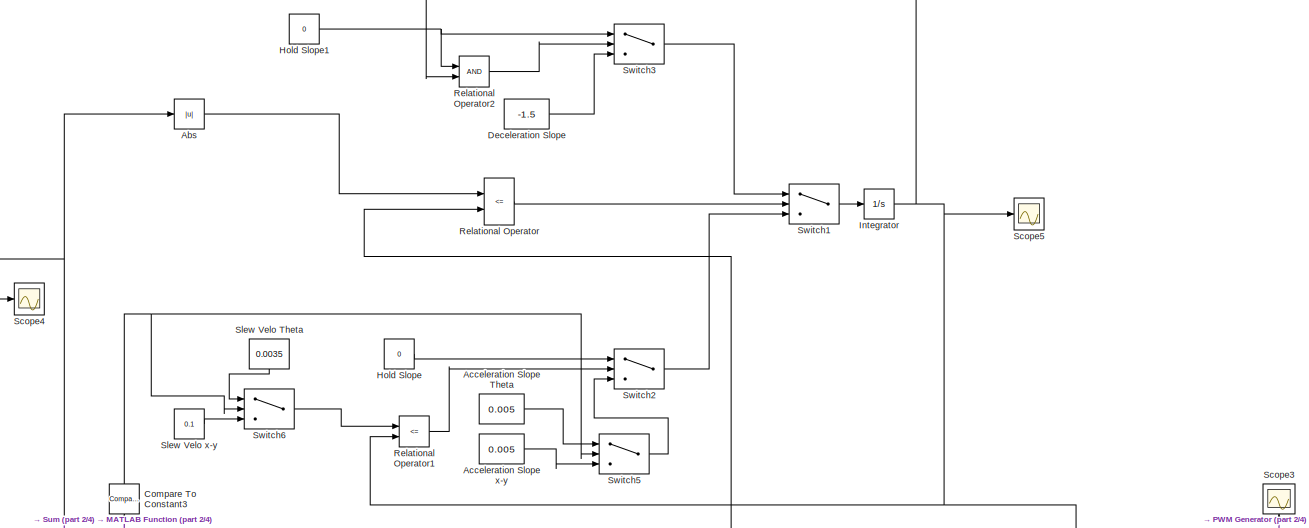
[diagram: root canvas - part 1/4, top left region]
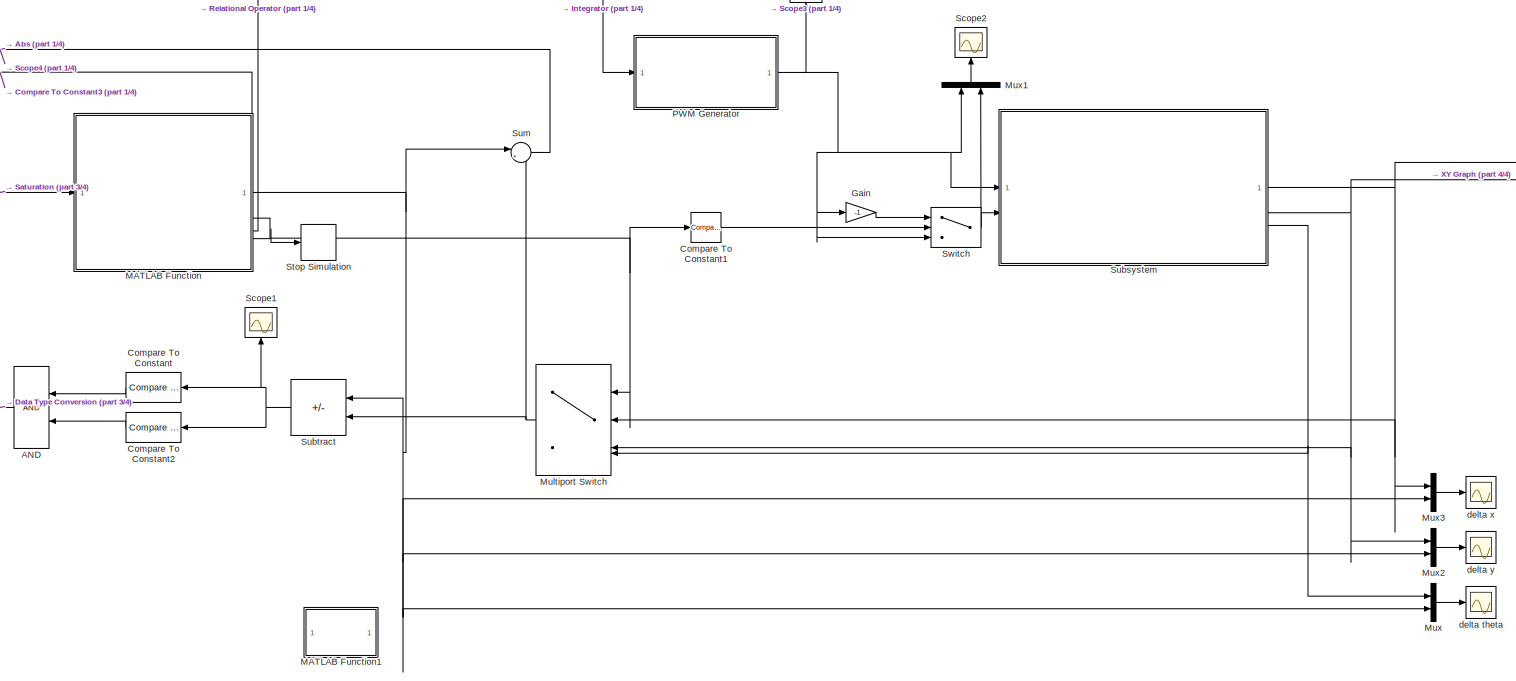
[diagram: root canvas - part 2/4, bottom center region]
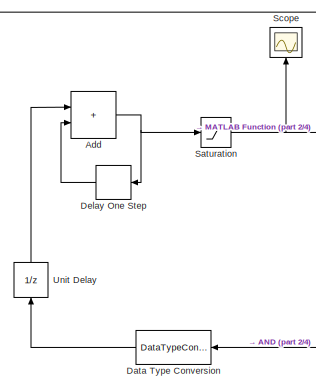
[diagram: root canvas - part 3/4, middle left region]
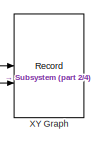
[diagram: root canvas - part 4/4, middle right region]
MODEL slx_6c52fc334cd0
KIND model
CONFIG AbsTol = auto
CONFIG EnableMultiTasking = off
CONFIG FixedStep = 0.01
CONFIG MaxStep = 0.01
CONFIG MinStep = 0.001
CONFIG RelTol = 1e-3
CONFIG SampleTimeConstraint = Unconstrained
CONFIG SolverName = ode45
CONFIG StartTime = 0.0
CONFIG StopTime = 700
WORKSPACE source: mxarray member
WORKSPACE L = 0.25
WORKSPACE R = 0.05
BLOCK [Logic] AND
  AllPortsSameDT = off
  IconShape = distinctive
  OutDataTypeStr = boolean
BLOCK [Abs] Abs
  SaturateOnIntegerOverflow = off
BLOCK [Constant] Acceleration Slope Theta
  Value = 0.005
BLOCK [Constant] Acceleration Slope x-y
  Value = 0.005
BLOCK [Sum] Add
  IconShape = rectangular
BLOCK [Reference] Compare To Constant  REF=simulink/Logic and Bit
Operations/Compare
To Constant
  NameLocation = top
  SourceBlock = simulink/Logic and Bit\nOperations/Compare\nTo Constant
  SourceType = Compare To Constant
BLOCK [Reference] Compare To Constant1  REF=simulink/Logic and Bit
Operations/Compare
To Constant
  SourceBlock = simulink/Logic and Bit\nOperations/Compare\nTo Constant
  SourceType = Compare To Constant
BLOCK [Reference] Compare To Constant2  REF=simulink/Logic and Bit
Operations/Compare
To Constant
  NameLocation = top
  SourceBlock = simulink/Logic and Bit\nOperations/Compare\nTo Constant
  SourceType = Compare To Constant
BLOCK [Reference] Compare To Constant3  REF=simulink/Logic and Bit
Operations/Compare
To Constant
  NameLocation = right
  SourceBlock = simulink/Logic and Bit\nOperations/Compare\nTo Constant
  SourceType = Compare To Constant
BLOCK [DataTypeConversion] Data Type Conversion
  RndMeth = Floor
  SaturateOnIntegerOverflow = off
BLOCK [Constant] Deceleration Slope
  Value = -1.5
BLOCK [Delay] Delay One Step
  DelayLength = 1
  InputPortMap = u0
BLOCK [Gain] Gain
  Gain = -1
BLOCK [Constant] Hold Slope
  Value = 0
BLOCK [Constant] Hold Slope1
  Value = 0
BLOCK [Integrator] Integrator
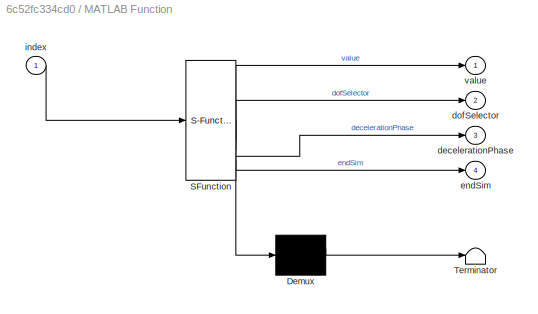
BLOCK [SubSystem] MATLAB Function
  ErrorFcn = Stateflow.Translate.translate
  PermitHierarchicalResolution = ExplicitOnly
  SFBlockType = MATLAB Function
  TreatAsAtomicUnit = on
BLOCK [Demux] MATLAB Function/ Demux 
  Outputs = 1
BLOCK [S-Function] MATLAB Function/ SFunction 
  EnableBusSupport = on
  FunctionName = sf_sfun
  PortCounts = [1 5]
  SFcnIsStateOwnerBlock = off
  SFunctionDeploymentMode = off
  Tag = Stateflow S-Function 2
BLOCK [Terminator] MATLAB Function/ Terminator 
BLOCK [Outport] MATLAB Function/decelerationPhase
  Port = 3
BLOCK [Outport] MATLAB Function/dofSelector
  Port = 2
BLOCK [Outport] MATLAB Function/endSim
  Port = 4
BLOCK [Inport] MATLAB Function/index
BLOCK [Outport] MATLAB Function/value
  VectorParamsAs1DForOutWhenUnconnected = off
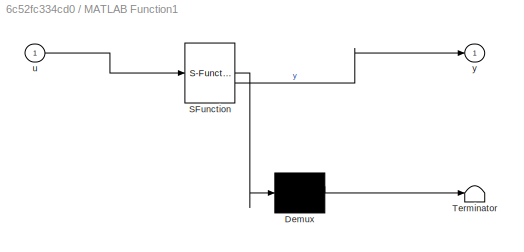
BLOCK [SubSystem] MATLAB Function1
  ErrorFcn = Stateflow.Translate.translate
  PermitHierarchicalResolution = ExplicitOnly
  SFBlockType = MATLAB Function
  TreatAsAtomicUnit = on
BLOCK [Demux] MATLAB Function1/ Demux 
  Outputs = 1
BLOCK [S-Function] MATLAB Function1/ SFunction 
  EnableBusSupport = on
  FunctionName = sf_sfun
  PortCounts = [1 2]
  SFcnIsStateOwnerBlock = off
  SFunctionDeploymentMode = off
  Tag = Stateflow S-Function 1
BLOCK [Terminator] MATLAB Function1/ Terminator 
BLOCK [Inport] MATLAB Function1/u
BLOCK [Outport] MATLAB Function1/y
BLOCK [MultiPortSwitch] Multiport Switch
  InputSameDT = off
  SaturateOnIntegerOverflow = off
BLOCK [Mux] Mux
  DisplayOption = bar
  Inputs = 2
BLOCK [Mux] Mux1
  DisplayOption = bar
  Inputs = 2
  NameLocation = right
BLOCK [Mux] Mux2
  DisplayOption = bar
  Inputs = 2
BLOCK [Mux] Mux3
  DisplayOption = bar
  Inputs = 2
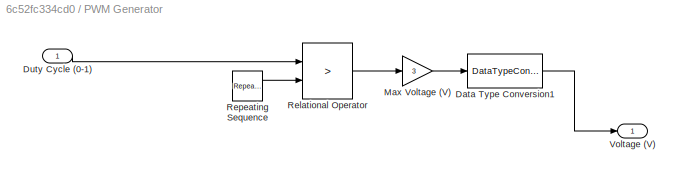
BLOCK [SubSystem] PWM Generator
BLOCK [DataTypeConversion] PWM Generator/Data Type Conversion1
  RndMeth = Floor
  SaturateOnIntegerOverflow = off
BLOCK [Inport] PWM Generator/Duty Cycle (0-1)
BLOCK [Gain] PWM Generator/Max Voltage (V)
  Gain = 3
BLOCK [RelationalOperator] PWM Generator/Relational Operator
  InputSameDT = off
  Operator = >
  OutDataTypeStr = boolean
  RndMeth = Simplest
BLOCK [Reference] PWM Generator/Repeating Sequence  REF=simulink/Sources/Repeating
Sequence
  SourceBlock = simulink/Sources/Repeating\nSequence
  SourceType = Repeating table
BLOCK [Outport] PWM Generator/Voltage (V)
BLOCK [RelationalOperator] Relational Operator
  InputSameDT = off
  Operator = <=
  OutDataTypeStr = boolean
  RndMeth = Simplest
BLOCK [RelationalOperator] Relational Operator1
  InputSameDT = off
  Operator = <=
  OutDataTypeStr = boolean
  RndMeth = Simplest
BLOCK [RelationalOperator] Relational Operator2
  InputSameDT = off
  OutDataTypeStr = boolean
  RndMeth = Simplest
BLOCK [Saturate] Saturation
  LinearizeAsGain = off
  LowerLimit = 0
  UpperLimit = 5
BLOCK [Scope] Scope
  Floating = off
  NameLocation = right
  NumInputPorts = 1
  ScopeSpecificationString = Simulink.scopes.TimeScopeBlockCfg('CurrentConfiguration', extmgr.ConfigurationSet(extmgr.Configuration('Core','General UI',true),extmgr.Configuration('Core','Source UI',true),extmgr.Configuration('Sources','WiredSimulink',true,'DataLoggingVariableName','ScopeData1'),extmgr.Configuration('Visuals','Time Domain',true,'SerializedDisplays',{struct('MinYLimReal','-0.125','MaxYLimReal','1.125','YLabelRe...<+1513ch>
BLOCK [Scope] Scope1
  Floating = off
  NameLocation = right
  NumInputPorts = 1
  ScopeSpecificationString = Simulink.scopes.TimeScopeBlockCfg('CurrentConfiguration', extmgr.ConfigurationSet(extmgr.Configuration('Core','General UI',true),extmgr.Configuration('Core','Source UI',true),extmgr.Configuration('Sources','WiredSimulink',true,'DataLoggingVariableName','ScopeData2'),extmgr.Configuration('Visuals','Time Domain',true,'SerializedDisplays',{struct('MinYLimReal','-22.01338','MaxYLimReal','19.1126','YLa...<+1545ch>
BLOCK [Scope] Scope2
  Floating = off
  NameLocation = right
  NumInputPorts = 1
  ScopeSpecificationString = Simulink.scopes.TimeScopeBlockCfg('CurrentConfiguration', extmgr.ConfigurationSet(extmgr.Configuration('Core','General UI',true),extmgr.Configuration('Core','Source UI',true),extmgr.Configuration('Sources','WiredSimulink',true,'DataLoggingVariableName','ScopeData1'),extmgr.Configuration('Visuals','Time Domain',true,'SerializedDisplays',{struct('MinYLimReal','-3.75','MaxYLimReal','3.75','YLabelReal...<+1519ch>
BLOCK [Scope] Scope3
  Floating = off
  NameLocation = right
  NumInputPorts = 1
  ScopeSpecificationString = Simulink.scopes.TimeScopeBlockCfg('CurrentConfiguration', extmgr.ConfigurationSet(extmgr.Configuration('Core','General UI',true),extmgr.Configuration('Core','Source UI',true),extmgr.Configuration('Sources','WiredSimulink',true,'DataLoggingVariableName','ScopeData2'),extmgr.Configuration('Visuals','Time Domain',true,'SerializedDisplays',{struct('MinYLimReal','-1.5','MaxYLimReal','13.5','YLabelReal'...<+1529ch>
BLOCK [Scope] Scope4
  Floating = off
  NumInputPorts = 1
  ScopeSpecificationString = Simulink.scopes.TimeScopeBlockCfg('CurrentConfiguration', extmgr.ConfigurationSet(extmgr.Configuration('Core','General UI',true),extmgr.Configuration('Core','Source UI',true),extmgr.Configuration('Sources','WiredSimulink',true,'DataLoggingVariableName','ScopeData3'),extmgr.Configuration('Visuals','Time Domain',true,'SerializedDisplays',{struct('MinYLimReal','-19.18386','MaxYLimReal','19.05022','YL...<+1542ch>
BLOCK [Scope] Scope5
  Floating = off
  NumInputPorts = 1
  ScopeSpecificationString = Simulink.scopes.TimeScopeBlockCfg('CurrentConfiguration', extmgr.ConfigurationSet(extmgr.Configuration('Core','General UI',true),extmgr.Configuration('Core','Source UI',true),extmgr.Configuration('Sources','WiredSimulink',true,'DataLoggingVariableName','ScopeData4'),extmgr.Configuration('Visuals','Time Domain',true,'SerializedDisplays',{struct('MinYLimReal','-0.0125','MaxYLimReal','0.1125','YLabel...<+1494ch>
BLOCK [Constant] Slew Velo Theta
  NameLocation = left
  Value = 0.0035
BLOCK [Constant] Slew Velo x-y
  Value = 0.1
BLOCK [Stop] Stop Simulation
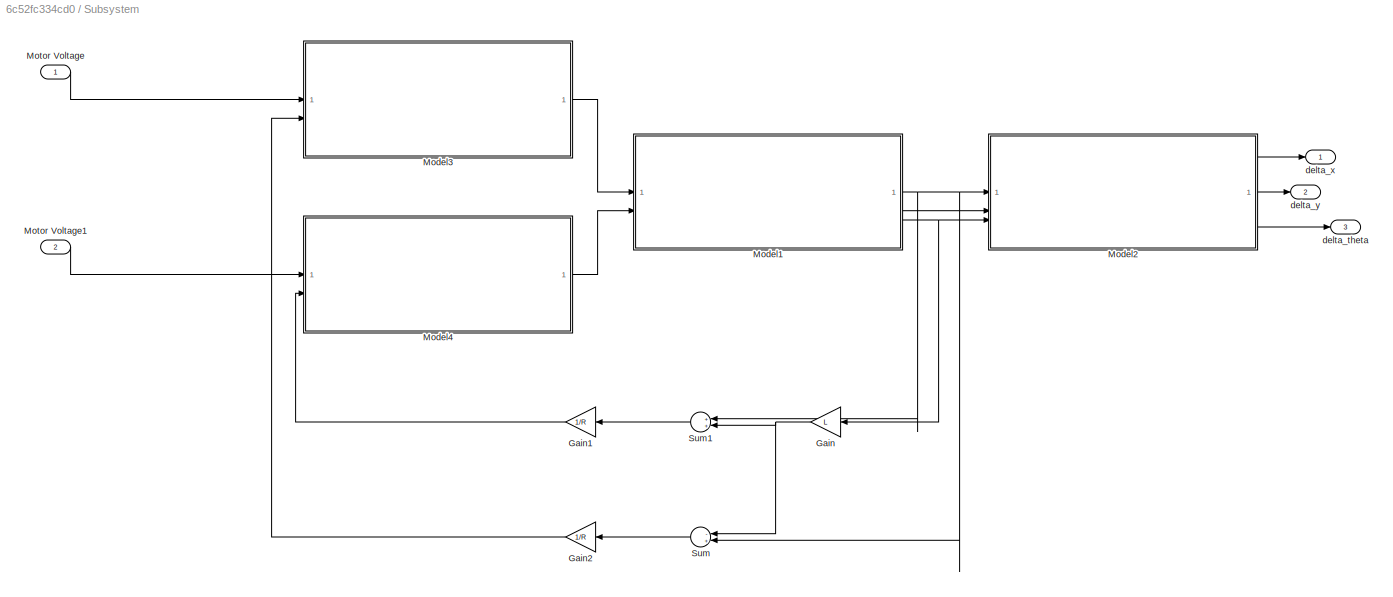
BLOCK [SubSystem] Subsystem
BLOCK [Gain] Subsystem/Gain
  Gain = L
  NameLocation = top
BLOCK [Gain] Subsystem/Gain1
  Gain = 1/R
  NameLocation = top
BLOCK [Gain] Subsystem/Gain2
  Gain = 1/R
  NameLocation = top
BLOCK [ModelReference] Subsystem/Model1
  ModelNameDialog = DynamicPhysicalModel.slx
  ModelReferenceVersion = 1.6
BLOCK [ModelReference] Subsystem/Model2
  ModelNameDialog = KinematicModel2.slx
  ModelReferenceVersion = 1.4
BLOCK [ModelReference] Subsystem/Model3
  ModelNameDialog = MotorModel.slx
  ModelReferenceVersion = 1.4
BLOCK [ModelReference] Subsystem/Model4
  ModelNameDialog = MotorModel.slx
  ModelReferenceVersion = 1.4
BLOCK [Inport] Subsystem/Motor Voltage
BLOCK [Inport] Subsystem/Motor Voltage1
  Port = 2
BLOCK [Sum] Subsystem/Sum
  Inputs = -+|
  NameLocation = top
BLOCK [Sum] Subsystem/Sum1
  Inputs = ++|
  NameLocation = top
BLOCK [Outport] Subsystem/delta_theta
  Port = 3
BLOCK [Outport] Subsystem/delta_x
BLOCK [Outport] Subsystem/delta_y
  Port = 2
BLOCK [Sum] Subtract
  IconShape = rectangular
  Inputs = +-
BLOCK [Sum] Sum
  Inputs = |+-
BLOCK [Switch] Switch
  Criteria = u2 > Threshold
  InputSameDT = off
  SaturateOnIntegerOverflow = off
BLOCK [Switch] Switch1
  Criteria = u2 > Threshold
  InputSameDT = off
  SaturateOnIntegerOverflow = off
BLOCK [Switch] Switch2
  Criteria = u2 > Threshold
  InputSameDT = off
  SaturateOnIntegerOverflow = off
BLOCK [Switch] Switch3
  Criteria = u2 > Threshold
  InputSameDT = off
  SaturateOnIntegerOverflow = off
BLOCK [Switch] Switch5
  Criteria = u2 > Threshold
  InputSameDT = off
  SaturateOnIntegerOverflow = off
BLOCK [Switch] Switch6
  Criteria = u2 > Threshold
  InputSameDT = off
  SaturateOnIntegerOverflow = off
BLOCK [UnitDelay] Unit Delay
  HasFrameUpgradeWarning = on
  NameLocation = right
  SampleTime = -1
BLOCK [Record] XY Graph
  CompatibilityTag = XY
  FileSettingsInternal = {"entries":[{"content":{"excelSettings":{"content":{},"type":"Streamout.ExcelSettings"}},"type":"Streamout.FileSettingStorage","uuid":""}],"packageUris":["http:\/\/schema.mathworks.com\/mf0\/streamout_blocks\/R2020a"],"version":"1.0"}
  Layout = [1 1]
  SignalsInternal = {"entries":[{"content":{"signals":[{"content":{"blockPath":[],"dimensions":[1],"domain":"","lineColor":"#a2142f","plots":[ 1 ],"port":1,"sid":[""],"signalID":1,"signalName":"Subsystem:1"},"type":"RecordBlkView.Signal","uuid":""},{"content":{"blockPath":[],"dimensions":[1],"domain":"","lineColor":"#139fff","plots":[ 1 ],"port":2,"sid":[""],"signalID":2,"signalName":"Subsystem:2"},"type":"RecordBlkV...<+168ch>
  VisualizationBindings = {"xyplotplugin":{"info":[{"series":[{"bindingParametersList":[{"parameter":"X-Axis","signalID":1,"signalName":"Subsystem:1"},{"parameter":"Y-Axis","signalID":2,"signalName":"Subsystem:2"}],"seriesID":0}],"subplotID":1}]}}
BLOCK [Scope] delta theta
  Floating = off
  NumInputPorts = 1
  ScopeSpecificationString = Simulink.scopes.TimeScopeBlockCfg('CurrentConfiguration', extmgr.ConfigurationSet(extmgr.Configuration('Core','General UI',true),extmgr.Configuration('Core','Source UI',true),extmgr.Configuration('Sources','WiredSimulink',true,'DataLoggingVariableName','ScopeData1'),extmgr.Configuration('Visuals','Time Domain',true,'SerializedDisplays',{struct('MinYLimReal','-12.11497','MaxYLimReal','15.46071','YL...<+1601ch>
BLOCK [Scope] delta x
  Floating = off
  NumInputPorts = 1
  ScopeSpecificationString = Simulink.scopes.TimeScopeBlockCfg('CurrentConfiguration', extmgr.ConfigurationSet(extmgr.Configuration('Core','General UI',true),extmgr.Configuration('Core','Source UI',true),extmgr.Configuration('Sources','WiredSimulink',true,'DataLoggingVariableName','ScopeData2'),extmgr.Configuration('Visuals','Time Domain',true,'SerializedDisplays',{struct('MinYLimReal','-13.38343','MaxYLimReal','19.45083','YL...<+1588ch>
BLOCK [Scope] delta y
  Floating = off
  NumInputPorts = 1
  ScopeSpecificationString = Simulink.scopes.TimeScopeBlockCfg('CurrentConfiguration', extmgr.ConfigurationSet(extmgr.Configuration('Core','General UI',true),extmgr.Configuration('Core','Source UI',true),extmgr.Configuration('Sources','WiredSimulink',true,'DataLoggingVariableName','ScopeData3'),extmgr.Configuration('Visuals','Time Domain',true,'SerializedDisplays',{struct('MinYLimReal','-13.54734','MaxYLimReal','18.17193','YL...<+1544ch>
LINE AND:1 -> Data Type Conversion:1
LINE Abs:1 -> Relational Operator:1
LINE Acceleration Slope Theta:1 -> Switch5:1
LINE Acceleration Slope x-y:1 -> Switch5:3
NET Add:1 -> Delay One Step:1, Saturation:1
LINE Compare To Constant1:1 -> Switch:2
LINE Compare To Constant2:1 -> AND:2
NET Compare To Constant3:1 -> Switch5:2, Switch6:2
LINE Compare To Constant:1 -> AND:1
LINE Data Type Conversion:1 -> Unit Delay:1
LINE Deceleration Slope:1 -> Switch3:3
LINE Delay One Step:1 -> Add:2
LINE Gain:1 -> Switch:1
NET Hold Slope1:1 -> Relational Operator2:1, Switch3:1
LINE Hold Slope:1 -> Switch2:1
NET Integrator:1 -> PWM Generator:1, Relational Operator1:2, Relational Operator2:2, Scope5:1
NET MATLAB Function:1 -> Mux2:2, Mux3:2, Mux:2, Subtract:1, Sum:1
NET MATLAB Function:2 -> Compare To Constant1:1, Compare To Constant3:1, Multiport Switch:1
LINE MATLAB Function:3 -> Relational Operator:2
LINE MATLAB Function:4 -> Stop Simulation:1
NET Multiport Switch:1 -> Subtract:2, Sum:2
LINE Mux1:1 -> Scope2:1
LINE Mux2:1 -> delta y:1
LINE Mux3:1 -> delta x:1
LINE Mux:1 -> delta theta:1
LINE PWM Generator/Data Type Conversion1:1 -> PWM Generator/Voltage (V):1
LINE PWM Generator/Duty Cycle (0-1):1 -> PWM Generator/Relational Operator:1
LINE PWM Generator/Max Voltage (V):1 -> PWM Generator/Data Type Conversion1:1
LINE PWM Generator/Relational Operator:1 -> PWM Generator/Max Voltage (V):1
LINE PWM Generator/Repeating Sequence:1 -> PWM Generator/Relational Operator:2
NET PWM Generator:1 -> Gain:1, Mux1:1, Scope3:1, Subsystem:1, Switch:3
LINE Relational Operator1:1 -> Switch2:2
LINE Relational Operator2:1 -> Switch3:2
LINE Relational Operator:1 -> Switch1:2
NET Saturation:1 -> MATLAB Function:1, Scope:1
LINE Slew Velo Theta:1 -> Switch6:1
LINE Slew Velo x-y:1 -> Switch6:3
LINE Subsystem/Gain1:1 -> Subsystem/Model4:2
LINE Subsystem/Gain2:1 -> Subsystem/Model3:2
NET Subsystem/Gain:1 -> Subsystem/Sum1:2, Subsystem/Sum:1
NET Subsystem/Model1:1 -> Subsystem/Model2:1, Subsystem/Sum1:1, Subsystem/Sum:2
LINE Subsystem/Model1:2 -> Subsystem/Model2:2
NET Subsystem/Model1:3 -> Subsystem/Gain:1, Subsystem/Model2:3
LINE Subsystem/Model2:1 -> Subsystem/delta_x:1
LINE Subsystem/Model2:2 -> Subsystem/delta_y:1
LINE Subsystem/Model2:3 -> Subsystem/delta_theta:1
LINE Subsystem/Model3:1 -> Subsystem/Model1:1
LINE Subsystem/Model4:1 -> Subsystem/Model1:2
LINE Subsystem/Motor Voltage1:1 -> Subsystem/Model4:1
LINE Subsystem/Motor Voltage:1 -> Subsystem/Model3:1
LINE Subsystem/Sum1:1 -> Subsystem/Gain1:1
LINE Subsystem/Sum:1 -> Subsystem/Gain2:1
NET Subsystem:1 -> Multiport Switch:2, Mux3:1, XY Graph:1
NET Subsystem:2 -> Multiport Switch:3, Mux2:1, XY Graph:2
NET Subsystem:3 -> Multiport Switch:4, Mux:1
NET Subtract:1 -> Compare To Constant2:1, Compare To Constant:1, Scope1:1
NET Sum:1 -> Abs:1, Scope4:1
LINE Switch1:1 -> Integrator:1
LINE Switch2:1 -> Switch1:3
LINE Switch3:1 -> Switch1:1
LINE Switch5:1 -> Switch2:3
LINE Switch6:1 -> Relational Operator1:1
NET Switch:1 -> Mux1:2, Subsystem:2
LINE Unit Delay:1 -> Add:1
note: NET lines group one-source signal fan-out (src -> all destinations, sorted); 1:1 wires keep LINE
CHART MATLAB Function1 states=1 transitions=1
  STATE_LABEL 'eML_blk_kernel()'
  STATE_LABEL 'SCRIPT:\nfunction y = phaseChecker(u)\n\ny = u;\n'
CHART MATLAB Function states=1 transitions=1
  STATE_LABEL 'eML_blk_kernel()'
  STATE_LABEL 'SCRIPT:\nfunction [value, dofSelector, decelerationPhase, endSim] = pathSignal(index)\n% Returns path values and a signal to stop simulation when out of bounds\n\n% Define the path matrix\npathMatrix = [15, 1, 4;\n             -pi/2, 3, 1;\n             -10.1, 2, 3.8;\n             -pi, 3, 1;\n              6.9, 1, 3];\n\n% Get the size of the path\nN = size(pathMatrix, 1);\n\n% Initialize outputs\nvalue = 0;\ndo...<+301ch>'
CHART  states=0 transitions=0
CHART  states=0 transitions=0
